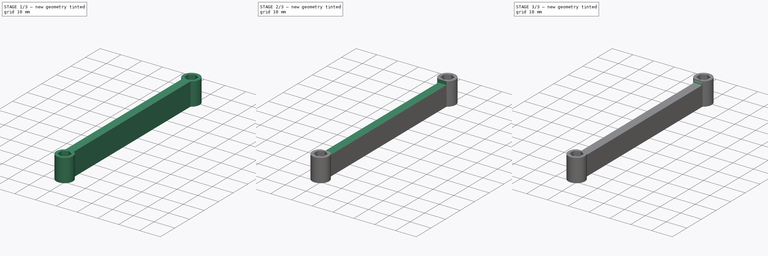
[diagram: build sequence overview — one tinted view per stage of 3, left to right]
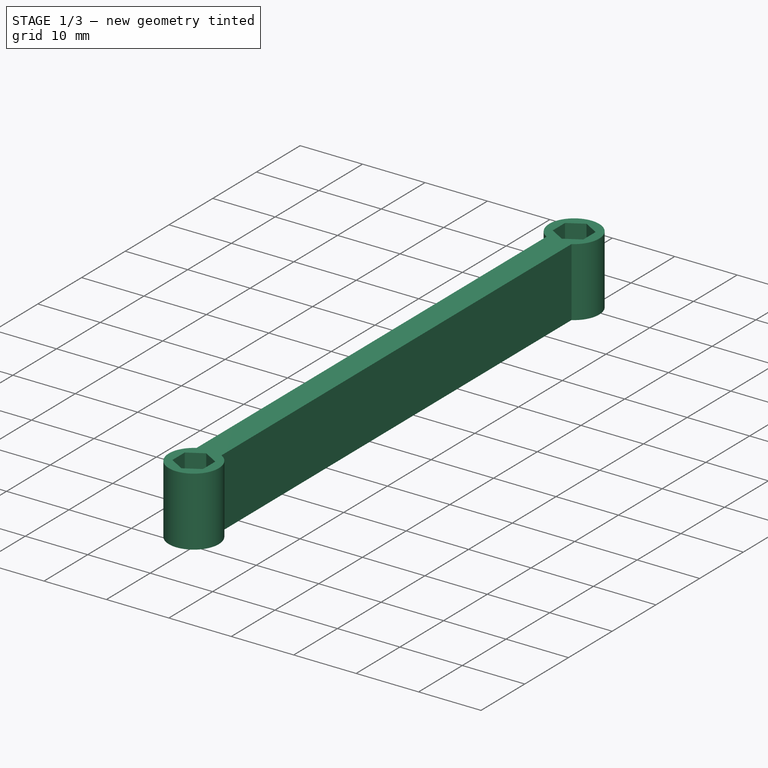
[diagram: stage 1 of 3 — iso view after this stage's code; geometry added in this stage tinted green]
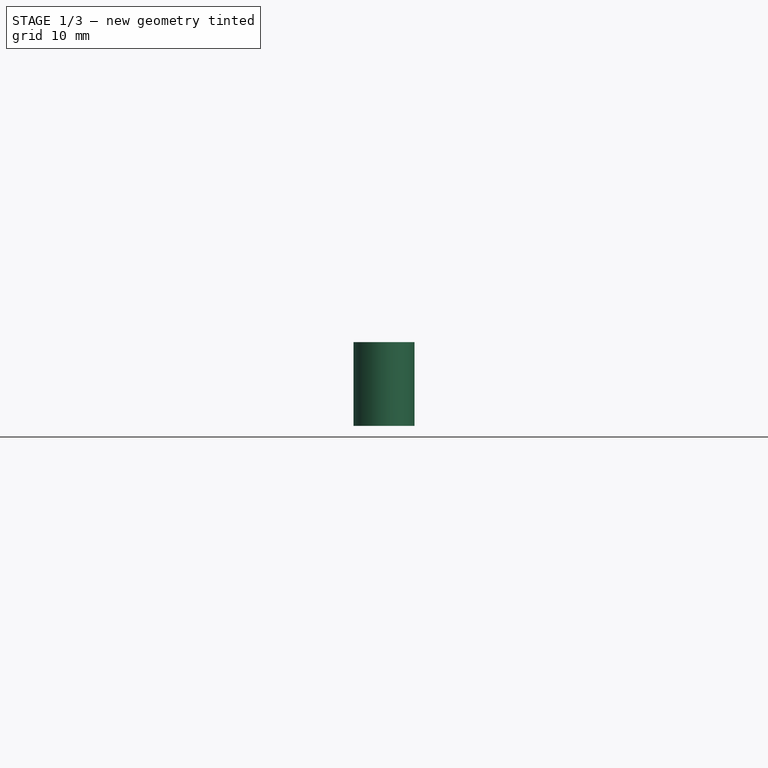
[diagram: stage 1 of 3 — front view after this stage's code; geometry added in this stage tinted green]
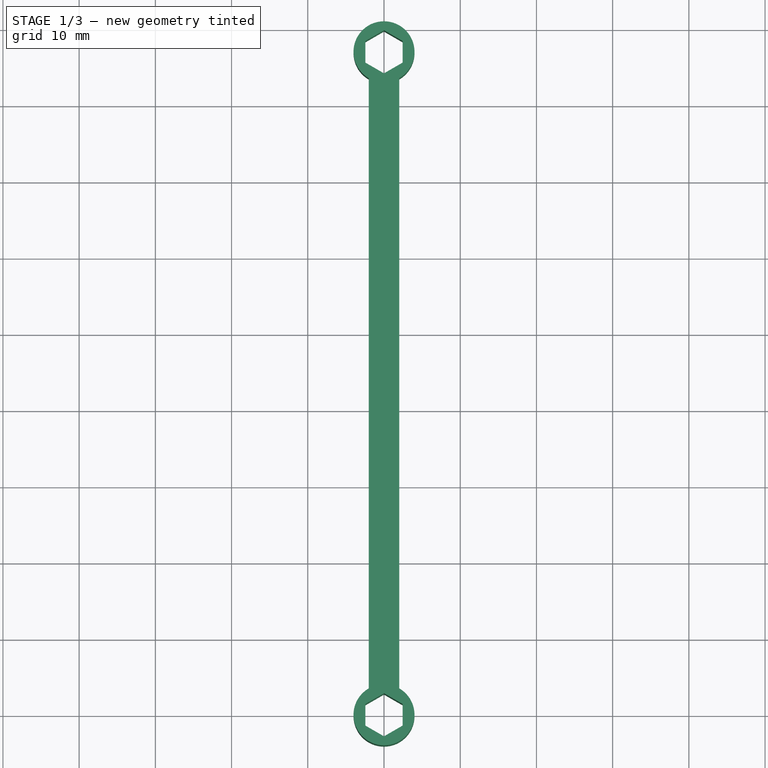
[diagram: stage 1 of 3 — top view after this stage's code; geometry added in this stage tinted green]
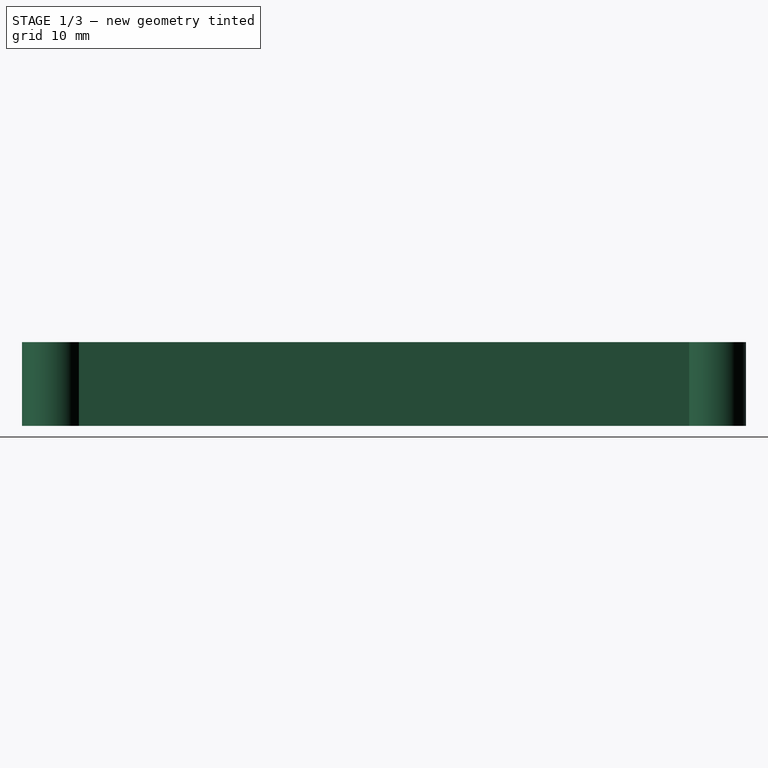
[diagram: stage 1 of 3 — right view after this stage's code; geometry added in this stage tinted green]
FCSTD DOCUMENT  (FreeCAD 0.19R24291 (Git))
Label: Interboard support
License: All rights reserved
LicenseURL: http://en.wikipedia.org/wiki/All_rights_reserved
objects: Sketcher::SketchObject×3, PartDesign::Pocket×2, PartDesign::Fillet×2, PartDesign::Pad×1, PartDesign::Body×1
note: 14 computed .brp shape members not serialized (recipe doc carries the construction recipe); baked Part::Feature solids carry a one-line shape summary decoded from their .brp

FEATURE [Sketcher::SketchObject] Sketch
  FullyConstrained = true
  MapMode = 5
  Support = -> [XY_Plane]
  sketch-geometry (4):
    g0: ArcOfCircle CenterX=0 CenterY=0 CenterZ=0 NormalX=0 NormalY=0 NormalZ=1 AngleXU=0 Radius=4 StartAngle=2.0944 EndAngle=7.33038
    g1: ArcOfCircle CenterX=0 CenterY=87 CenterZ=0 NormalX=0 NormalY=0 NormalZ=1 AngleXU=0 Radius=4 StartAngle=5.23599 EndAngle=10.472
    g2: LineSegment StartX=-2 StartY=83.5359 StartZ=0 EndX=-2 EndY=3.4641 EndZ=0
    g3: LineSegment StartX=2 StartY=83.5359 StartZ=0 EndX=2 EndY=3.4641 EndZ=0
  constraints (13):
    c: Coincident(g0,g-1)
    c: PointOnObject(g1,g-2)
    c: Coincident(g2,g1)
    c: Coincident(g2,g0)
    c: Vertical(g2)
    c: Coincident(g3,g1)
    c: Coincident(g3,g0)
    c: Vertical(g3)
    c: Horizontal(g1,g1)
    c: Equal(g0,g1)
    c: DistanceY(g0,g1) = 87
    c: Diameter(g1) = 8
    c: DistanceX(g1,g1) = 4
FEATURE [PartDesign::Pad] Pad
  Direction = (1,1,1)
  Length = 11
  Length2 = 100
  Profile = -> Sketch
  Type = 0
FEATURE [Sketcher::SketchObject] Sketch001
  ExternalGeometry = -> [Pad]
  FullyConstrained = true
  MapMode = 5
  Placement = pos=(0,0,11) rot=(0,0,1;0rad)
  Support = -> [Pad]
  sketch-geometry (14):
    g0: LineSegment StartX=2.45 StartY=85.5855 StartZ=0 EndX=2.45 EndY=88.4145 EndZ=0
    g1: LineSegment StartX=2.45 StartY=88.4145 StartZ=0 EndX=0 EndY=89.829 EndZ=0
    g2: LineSegment StartX=0 StartY=89.829 StartZ=0 EndX=-2.45 EndY=88.4145 EndZ=0
    g3: LineSegment StartX=-2.45 StartY=88.4145 StartZ=0 EndX=-2.45 EndY=85.5855 EndZ=0
    g4: LineSegment StartX=-2.45 StartY=85.5855 StartZ=0 EndX=-4e-16 EndY=84.171 EndZ=0
    g5: LineSegment StartX=-4e-16 StartY=84.171 StartZ=0 EndX=2.45 EndY=85.5855 EndZ=0
    g6: Circle CenterX=0 CenterY=87 CenterZ=0 NormalX=0 NormalY=0 NormalZ=1 AngleXU=0 Radius=2.82902
    g7: LineSegment StartX=2.45 StartY=-1.41451 StartZ=0 EndX=2.45 EndY=1.41451 EndZ=0
    g8: LineSegment StartX=2.45 StartY=1.41451 StartZ=0 EndX=0 EndY=2.82902 EndZ=0
    g9: LineSegment StartX=0 StartY=2.82902 StartZ=0 EndX=-2.45 EndY=1.41451 EndZ=0
    g10: LineSegment StartX=-2.45 StartY=1.41451 StartZ=0 EndX=-2.45 EndY=-1.41451 EndZ=0
    g11: LineSegment StartX=-2.45 StartY=-1.41451 StartZ=0 EndX=0 EndY=-2.82902 EndZ=0
    g12: LineSegment StartX=0 StartY=-2.82902 StartZ=0 EndX=2.45 EndY=-1.41451 EndZ=0
    g13: Circle CenterX=0 CenterY=0 CenterZ=0 NormalX=0 NormalY=0 NormalZ=1 AngleXU=0 Radius=2.82902
  constraints (32):
    c: Coincident(g0,g1)
    c: Coincident(g1,g2)
    c: Coincident(g2,g3)
    c: Coincident(g3,g4)
    c: Coincident(g4,g5)
    c: Coincident(g5,g0)
    c: Equal(g0, g1-g5) x5
    c: PointOnObject(g0,g6)
    c: PointOnObject(g1,g6)
    c: PointOnObject(g2,g6)
    c: PointOnObject(g3,g6)
    c: PointOnObject(g4,g6)
    c: PointOnObject(g5,g6)
    c: Coincident(g6,g-4)
    c: Coincident(g7,g8)
    c: Coincident(g8,g9)
    c: Coincident(g9,g10)
    c: Coincident(g10,g11)
    c: Coincident(g11,g12)
    c: Coincident(g12,g7)
    c: Equal(g7, g8-g12) x5
    c: PointOnObject(g7,g13)
    c: PointOnObject(g8,g13)
    c: PointOnObject(g9,g13)
    c: PointOnObject(g10,g13)
    c: PointOnObject(g11,g13)
    c: PointOnObject(g12,g13)
    c: Coincident(g13,g-1)
    c: PointOnObject(g8,g-2)
    c: Equal(g8,g5)
    c: PointOnObject(g1,g-2)
    c: DistanceX(g2,g0) = 4.9
FEATURE [PartDesign::Pocket] Pocket
  BaseFeature = -> Pad
  Length = 5
  Length2 = 100
  Profile = -> Sketch001
  Type = 1
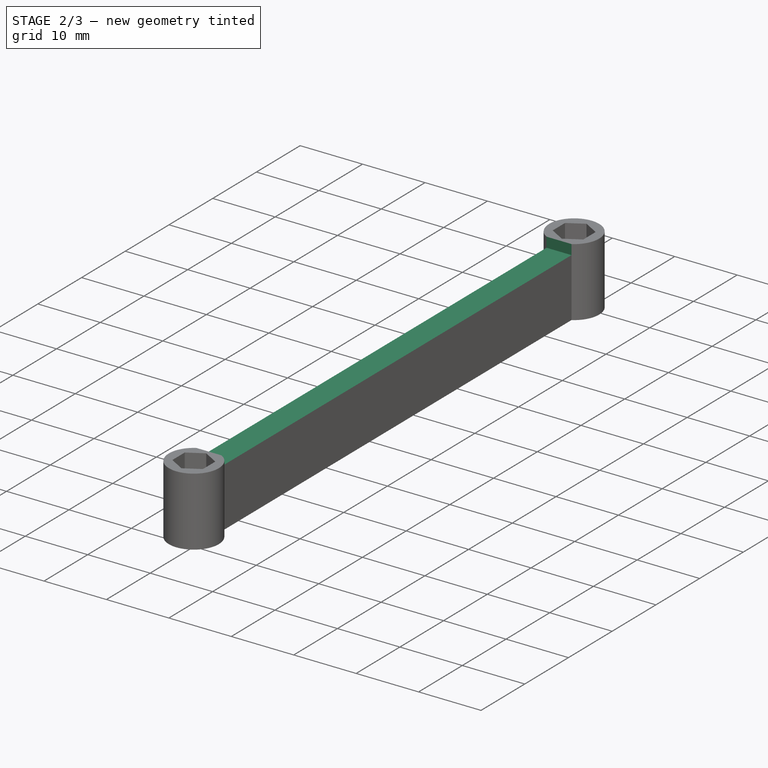
[diagram: stage 2 of 3 — iso view after this stage's code; geometry added in this stage tinted green]
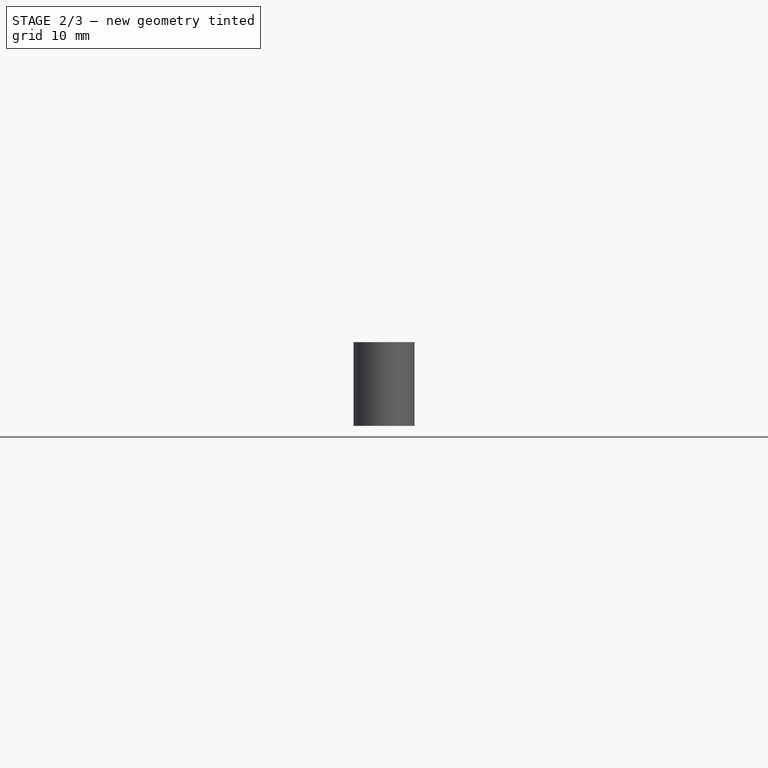
[diagram: stage 2 of 3 — front view after this stage's code; geometry added in this stage tinted green]
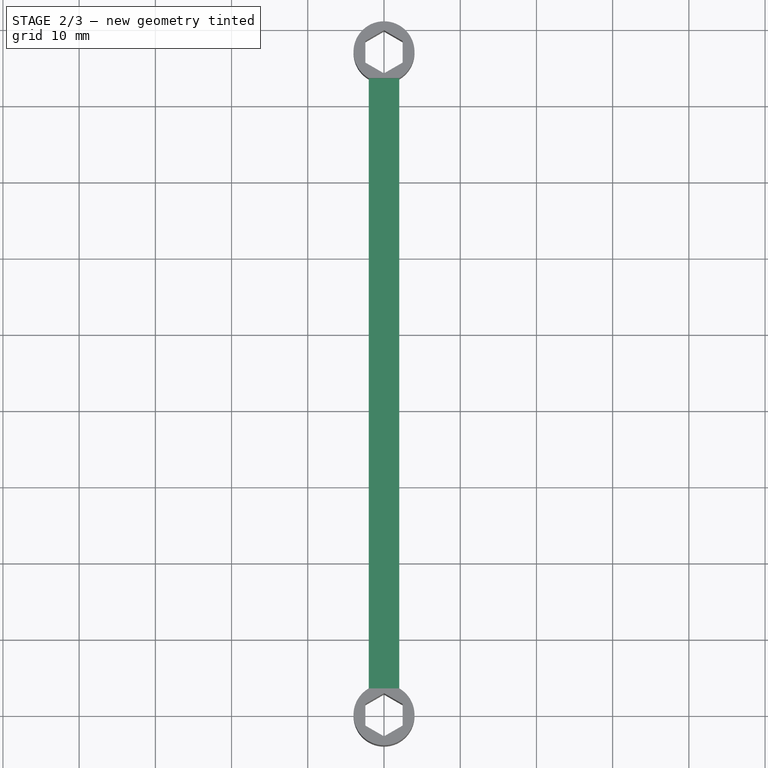
[diagram: stage 2 of 3 — top view after this stage's code; geometry added in this stage tinted green]
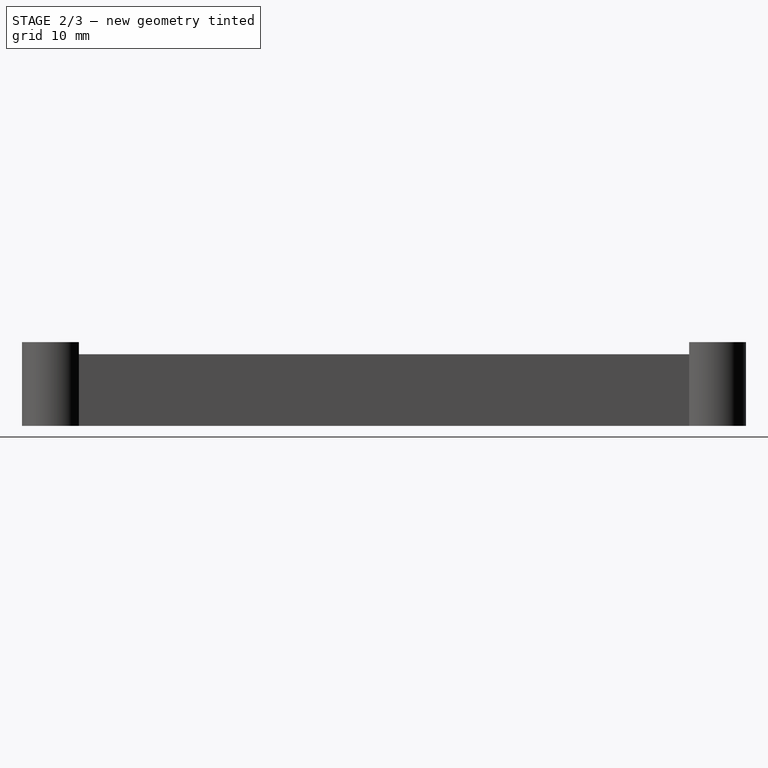
[diagram: stage 2 of 3 — right view after this stage's code; geometry added in this stage tinted green]
FEATURE [Sketcher::SketchObject] Sketch002
  ExternalGeometry = -> [Pocket]
  FullyConstrained = true
  MapMode = 5
  Placement = pos=(2,0,0) rot=(0.57735,0.57735,0.57735;2.0944rad)
  Support = -> [Pocket]
  sketch-geometry (4):
    g0: LineSegment StartX=3.4641 StartY=11 StartZ=0 EndX=83.5359 EndY=11 EndZ=0
    g1: LineSegment StartX=83.5359 StartY=11 StartZ=0 EndX=83.5359 EndY=9.4 EndZ=0
    g2: LineSegment StartX=83.5359 StartY=9.4 StartZ=0 EndX=3.4641 EndY=9.4 EndZ=0
    g3: LineSegment StartX=3.4641 StartY=9.4 StartZ=0 EndX=3.4641 EndY=11 EndZ=0
  constraints (10):
    c: Coincident(g0,g1)
    c: Coincident(g1,g2)
    c: Coincident(g2,g3)
    c: Coincident(g3,g0)
    c: Horizontal(g2)
    c: Vertical(g1)
    c: Vertical(g3)
    c: Coincident(g0,g-3)
    c: Coincident(g-3,g0)
    c: DistanceY(g1,g1) = 1.6
FEATURE [PartDesign::Pocket] Pocket001
  BaseFeature = -> Pocket
  Length = 5
  Length2 = 100
  Profile = -> Sketch002
  Type = 1
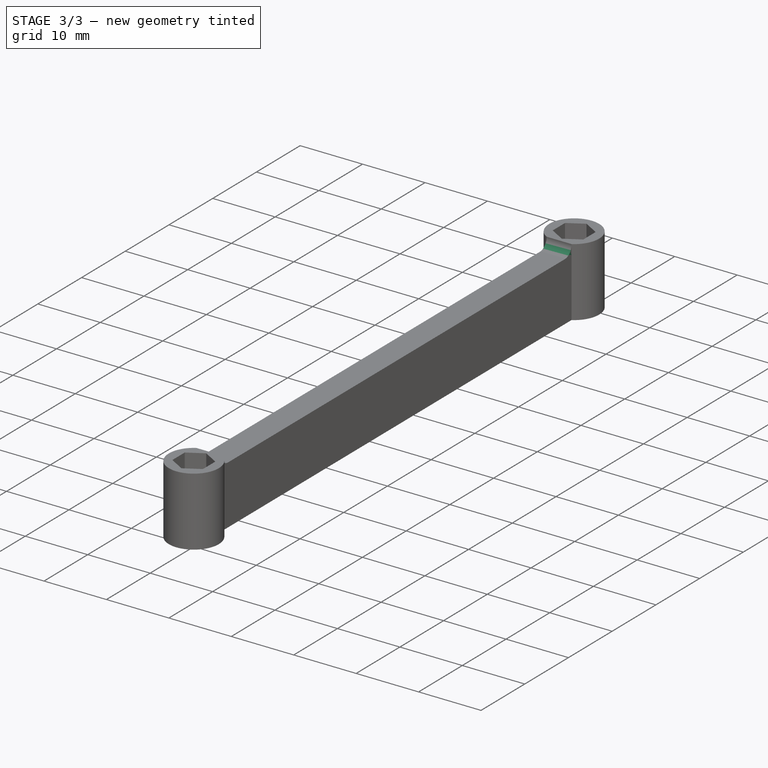
[diagram: stage 3 of 3 — iso view after this stage's code; geometry added in this stage tinted green]
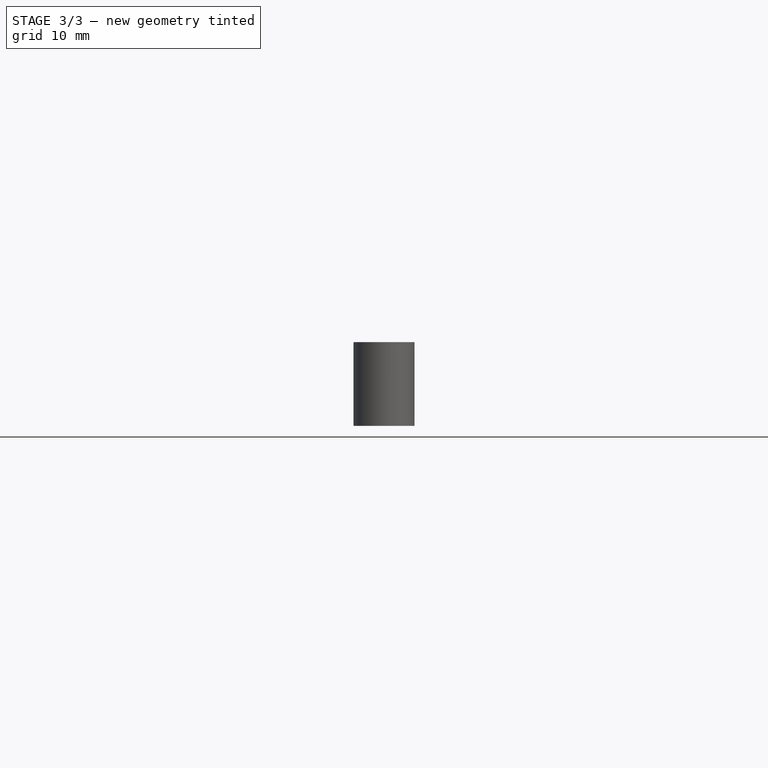
[diagram: stage 3 of 3 — front view after this stage's code; geometry added in this stage tinted green]
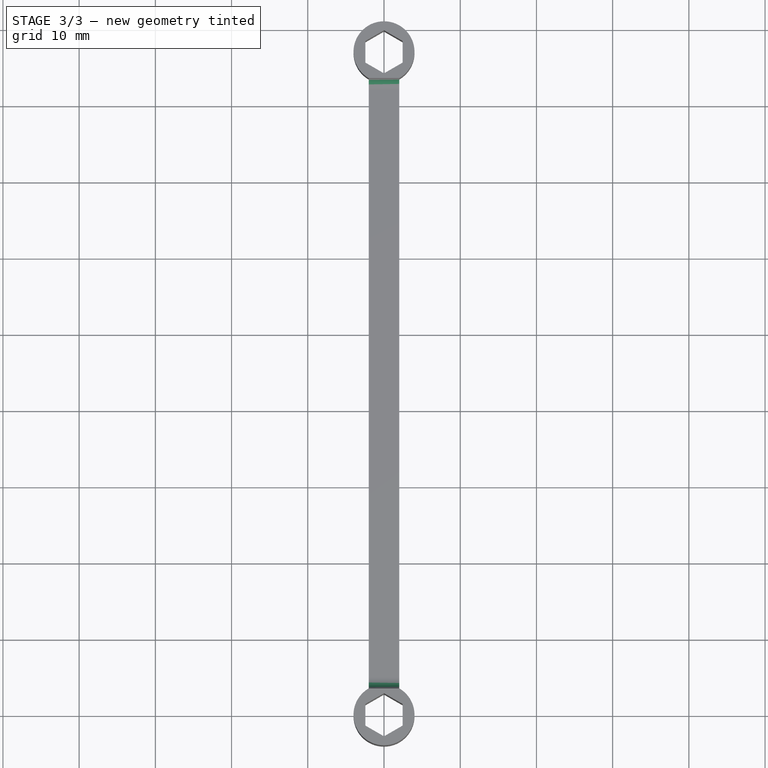
[diagram: stage 3 of 3 — top view after this stage's code; geometry added in this stage tinted green]
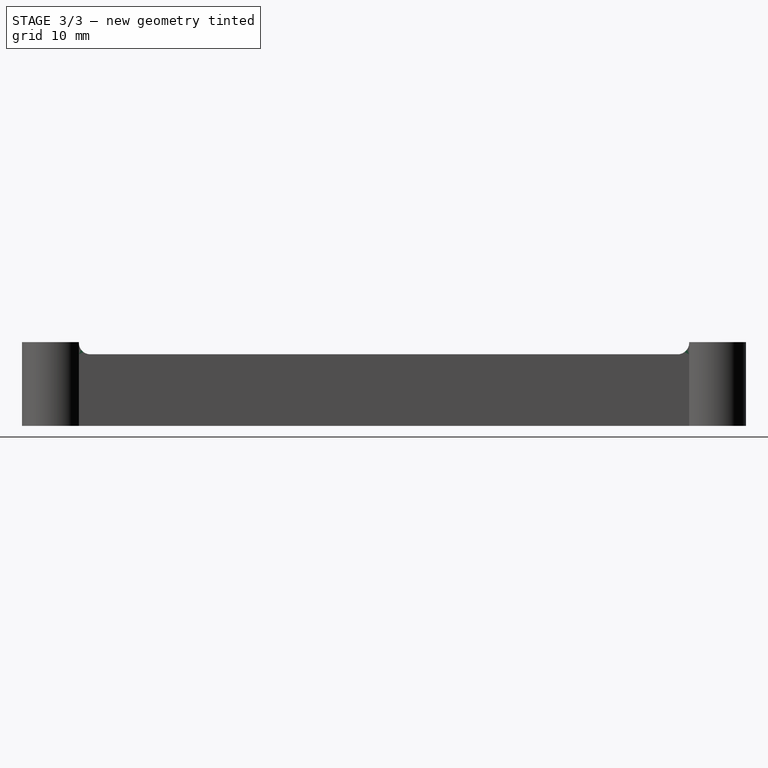
[diagram: stage 3 of 3 — right view after this stage's code; geometry added in this stage tinted green]
FEATURE [PartDesign::Fillet] Fillet
  Base = -> Pocket001 [Edge10]
  BaseFeature = -> Pocket001
  Radius = 1.5
  SupportTransform = false
FEATURE [PartDesign::Fillet] Fillet001
  Base = -> Fillet [Edge39]
  BaseFeature = -> Fillet
  Radius = 1.5
  SupportTransform = false
FEATURE [PartDesign::Body] Body
  Group = -> [Sketch,Pad,Sketch001,Pocket,Sketch002,Pocket001,Fillet,Fillet001]
  Origin = -> Origin
  Tip = -> Fillet001
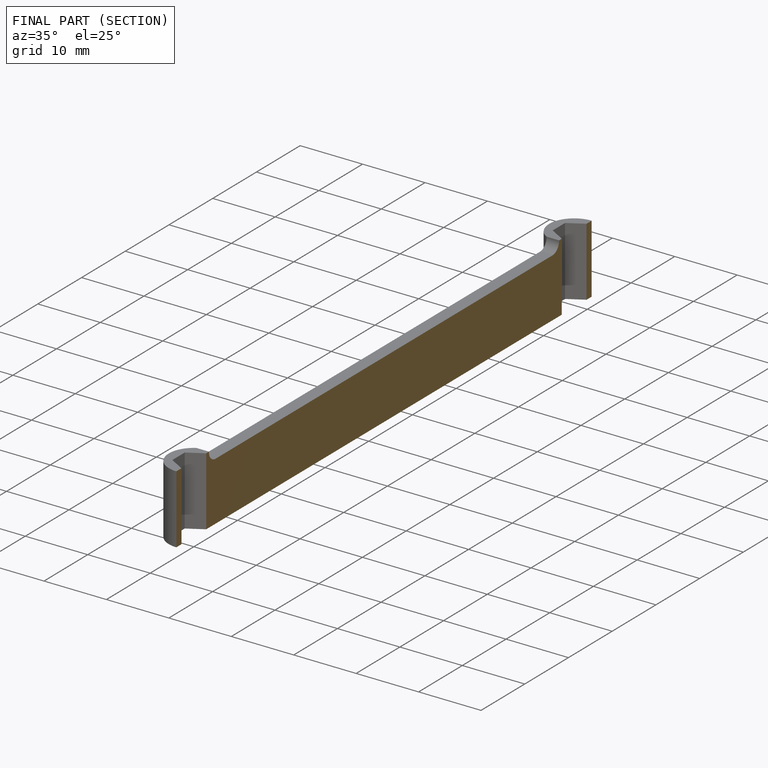
[diagram: finished part — half-section view (interior)]
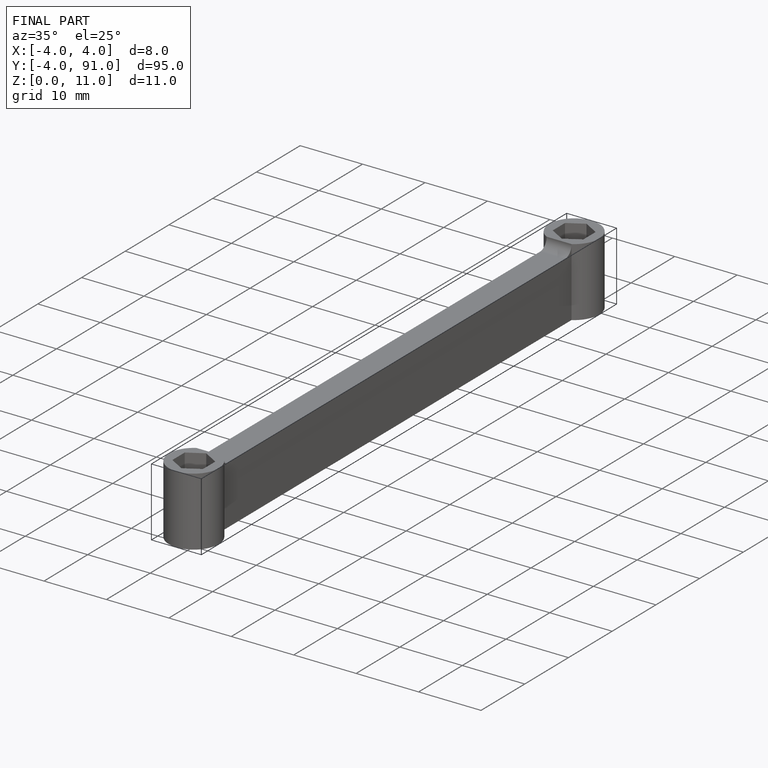
[diagram: finished part — iso view with bounding-box wireframe]
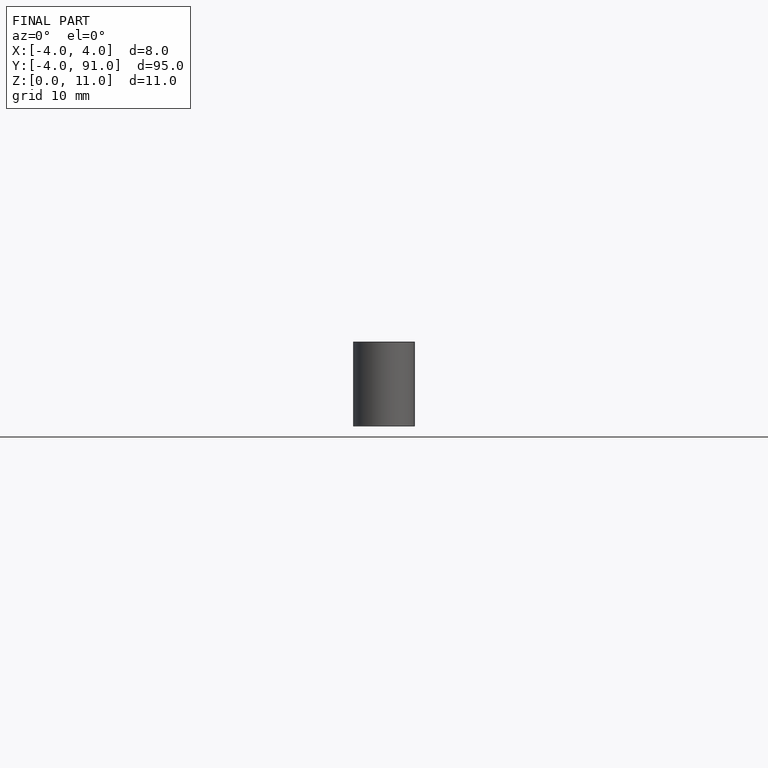
[diagram: finished part — front view with bounding-box wireframe]
